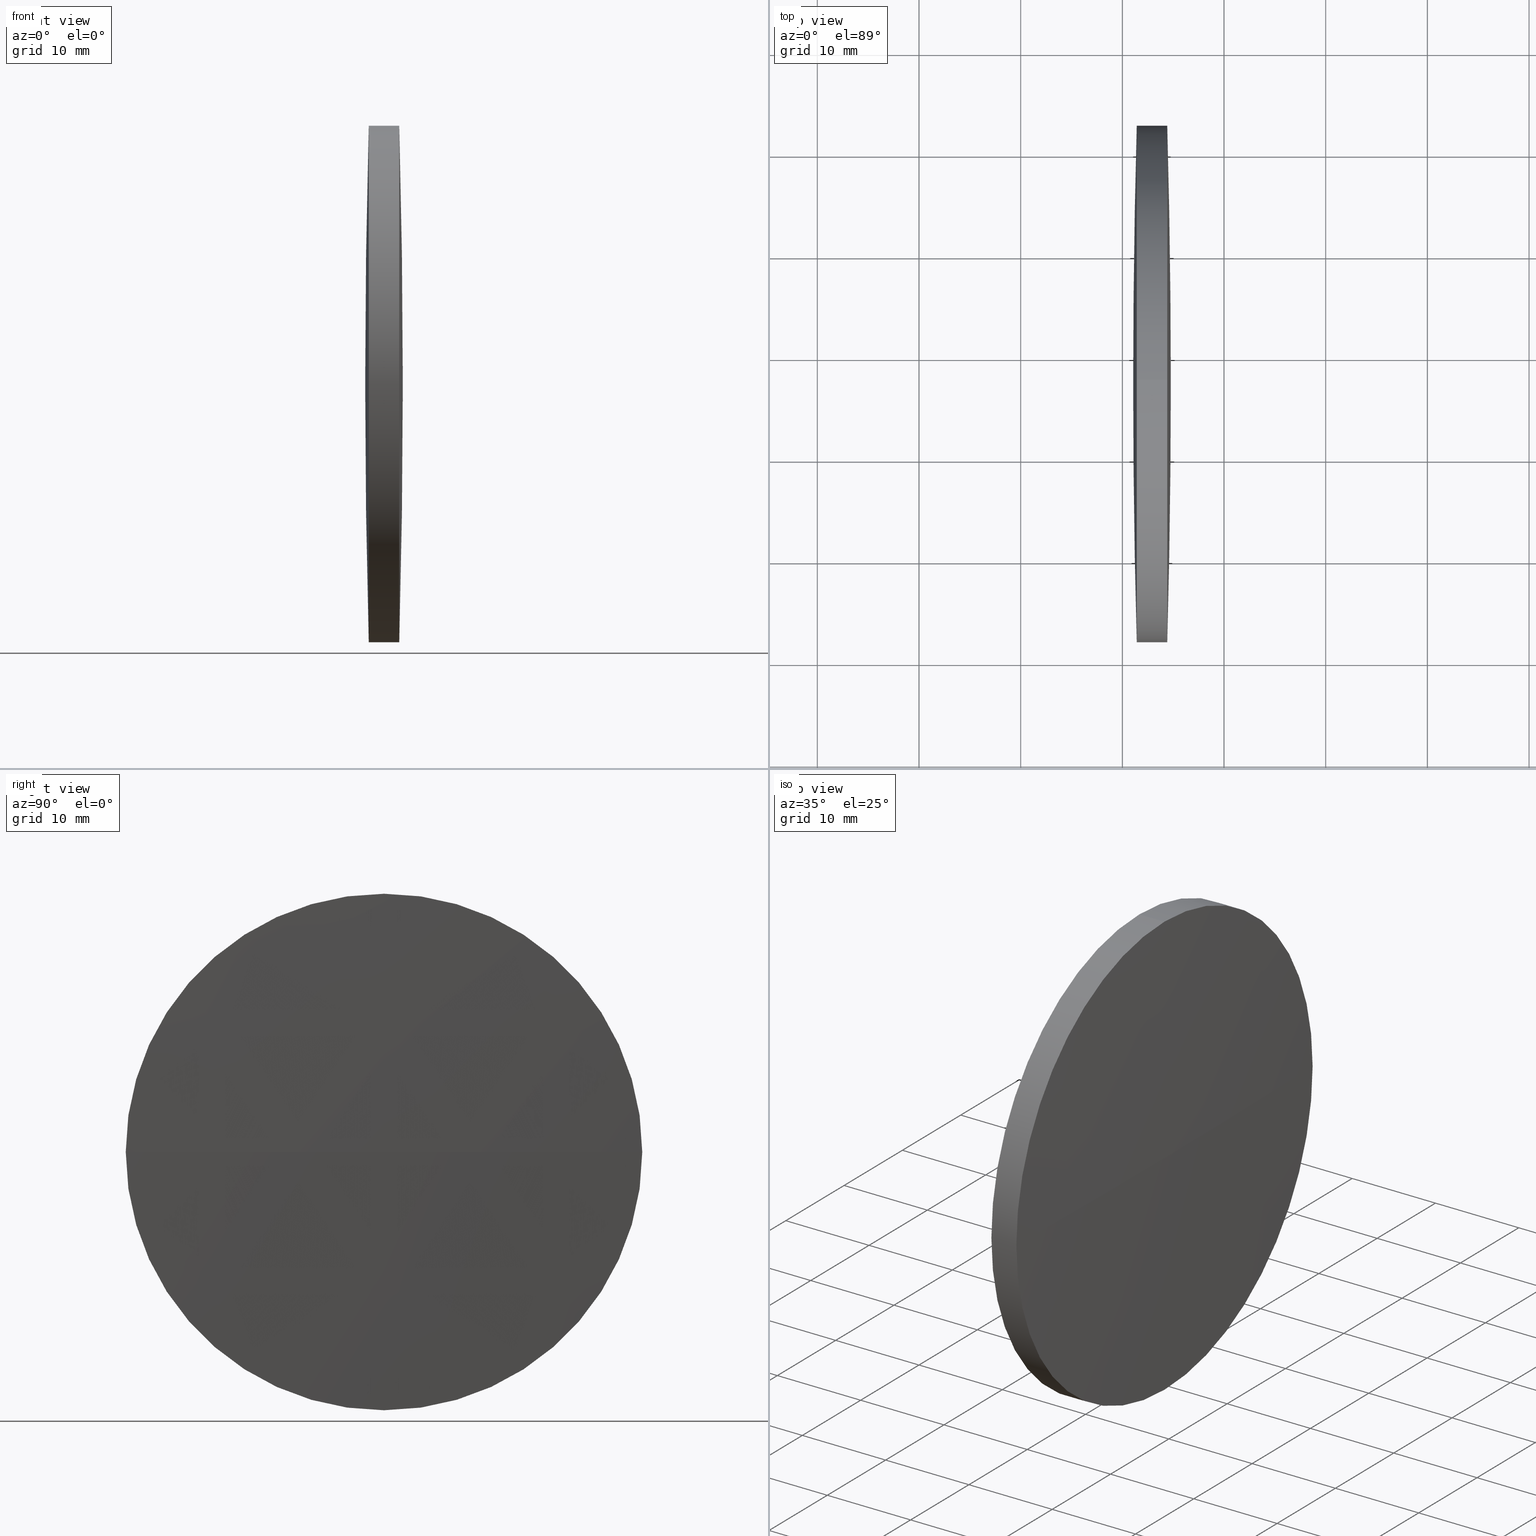
[diagram: canonical four-view strip — front | top / right | iso, engineering-drawing reading convention]
A machine part, canonical four-view strip (front | top / right | iso — engineering-drawing reading convention). The complete STEP part file that produces these views, byte-faithful:
ISO-10303-21;
HEADER;
FILE_DESCRIPTION (( 'STEP AP203' ),
    '1' );
FILE_NAME ('110111.STEP',
    '2019-07-08T08:36:37',
    ( '' ),
    ( '' ),
    'SwSTEP 2.0',
    'SolidWorks 2016',
    '' );
FILE_SCHEMA (( 'CONFIG_CONTROL_DESIGN' ));
ENDSEC;

DATA;
#1 = VECTOR ( 'NONE', #315, 1000.000000000000000 ) ;
#2 = AXIS2_PLACEMENT_3D ( 'NONE', #11, #34, #241 ) ;
#3 = APPROVAL_ROLE ( '' ) ;
#4 = APPROVAL_STATUS ( 'not_yet_approved' ) ;
#5 = CC_DESIGN_PERSON_AND_ORGANIZATION_ASSIGNMENT ( #142, #140, ( #295 ) ) ;
#6 = EDGE_CURVE ( 'NONE', #223, #303, #261, .T. ) ;
#7 = VERTEX_POINT ( 'NONE', #260 ) ;
#8 = APPROVAL_PERSON_ORGANIZATION ( #321, #181, #280 ) ;
#9 = CC_DESIGN_PERSON_AND_ORGANIZATION_ASSIGNMENT ( #88, #77, ( #195 ) ) ;
#10 = PERSON_AND_ORGANIZATION ( #177, #174 ) ;
#11 = CARTESIAN_POINT ( 'NONE',  ( 174.4163664064679400, 97.23222604636956100, 0.0000000000000000000 ) ) ;
#12 = ORIENTED_EDGE ( 'NONE', *, *, #345, .F. ) ;
#13 = FACE_OUTER_BOUND ( 'NONE', #265, .T. ) ;
#14 = ADVANCED_FACE ( 'NONE', ( #328 ), #247, .T. ) ;
#15 = CALENDAR_DATE ( 2019, 8, 7 ) ;
#16 = COORDINATED_UNIVERSAL_TIME_OFFSET ( 8, 0, .AHEAD. ) ;
#17 = FACE_OUTER_BOUND ( 'NONE', #121, .T. ) ;
#18 = CARTESIAN_POINT ( 'NONE',  ( 174.7663856636108100, 97.23222604636841000, 0.0000000000000000000 ) ) ;
#19 = ORIENTED_EDGE ( 'NONE', *, *, #238, .F. ) ;
#20 =( NAMED_UNIT ( * ) SI_UNIT ( $, .STERADIAN. ) SOLID_ANGLE_UNIT ( ) );
#21 = COORDINATED_UNIVERSAL_TIME_OFFSET ( 8, 0, .AHEAD. ) ;
#22 = CARTESIAN_POINT ( 'NONE',  ( 165.7441079421506900, 97.23222604636956100, 0.0000000000000000000 ) ) ;
#23 = MANIFOLD_SOLID_BREP ( '��ת1', #287 ) ;
#24 = PERSON_AND_ORGANIZATION_ROLE ( 'creator' ) ;
#25 = CALENDAR_DATE ( 2019, 8, 7 ) ;
#26 = ORIENTED_EDGE ( 'NONE', *, *, #104, .T. ) ;
#27 = CC_DESIGN_DATE_AND_TIME_ASSIGNMENT ( #264, #111, ( #85 ) ) ;
#28 = PERSON_AND_ORGANIZATION_ROLE ( 'design_owner' ) ;
#29 = AXIS2_PLACEMENT_3D ( 'NONE', #220, #132, #135 ) ;
#30 = COORDINATED_UNIVERSAL_TIME_OFFSET ( 8, 0, .AHEAD. ) ;
#31 = ORIENTED_EDGE ( 'NONE', *, *, #81, .T. ) ;
#32 = ORIENTED_EDGE ( 'NONE', *, *, #290, .F. ) ;
#33 = PERSON_AND_ORGANIZATION ( #177, #174 ) ;
#34 = DIRECTION ( 'NONE',  ( -1.000000000000000000, -0.0000000000000000000, -0.0000000000000000000 ) ) ;
#35 = APPROVAL_DATE_TIME ( #65, #107 ) ;
#36 = DIRECTION ( 'NONE',  ( 0.0000000000000000000, 1.000000000000000000, 0.0000000000000000000 ) ) ;
#37 = DIRECTION ( 'NONE',  ( -1.000000000000000000, -0.0000000000000000000, -0.0000000000000000000 ) ) ;
#38 = AXIS2_PLACEMENT_3D ( 'NONE', #267, #191, #194 ) ;
#39 = CARTESIAN_POINT ( 'NONE',  ( 174.4163664064679700, 122.6322260463703800, 0.0000000000000000000 ) ) ;
#40 = LOCAL_TIME ( 16, 36, 36.00000000000000000, #206 ) ;
#41 = DIRECTION ( 'NONE',  ( -1.000000000000000000, -0.0000000000000000000, -0.0000000000000000000 ) ) ;
#42 = VERTEX_POINT ( 'NONE', #332 ) ;
#43 = DIRECTION ( 'NONE',  ( 0.0000000000000000000, 0.0000000000000000000, 1.000000000000000000 ) ) ;
#44 = DIRECTION ( 'NONE',  ( 0.0000000000000000000, 1.224646799147353200E-016, -1.000000000000000000 ) ) ;
#45 =( GEOMETRIC_REPRESENTATION_CONTEXT ( 3 ) GLOBAL_UNCERTAINTY_ASSIGNED_CONTEXT ( ( #146 ) ) GLOBAL_UNIT_ASSIGNED_CONTEXT ( ( #164, #193, #20 ) ) REPRESENTATION_CONTEXT ( 'NONE', 'WORKASPACE' ) );
#46 = PERSON_AND_ORGANIZATION_ROLE ( 'classification_officer' ) ;
#47 = ORIENTED_EDGE ( 'NONE', *, *, #316, .F. ) ;
#48 = VECTOR ( 'NONE', #186, 1000.000000000000000 ) ;
#49 = VERTEX_POINT ( 'NONE', #214 ) ;
#50 = APPROVAL_STATUS ( 'not_yet_approved' ) ;
#51 = ORIENTED_EDGE ( 'NONE', *, *, #6, .T. ) ;
#52 = MECHANICAL_CONTEXT ( 'NONE', #139, 'mechanical' ) ;
#53 = DATE_AND_TIME ( #275, #333 ) ;
#54 = APPLICATION_PROTOCOL_DEFINITION ( 'international standard', 'config_control_design', 1994, #114 ) ;
#55 = FACE_OUTER_BOUND ( 'NONE', #331, .T. ) ;
#56 = SPHERICAL_SURFACE ( 'NONE', #192, 921.7814453236338700 ) ;
#57 = CC_DESIGN_PERSON_AND_ORGANIZATION_ASSIGNMENT ( #147, #113, ( #225 ) ) ;
#58 = PERSON_AND_ORGANIZATION ( #177, #174 ) ;
#59 = CIRCLE ( 'NONE', #122, 25.39999999999999100 ) ;
#60 = DIRECTION ( 'NONE',  ( -1.000000000000000000, -0.0000000000000000000, -0.0000000000000000000 ) ) ;
#61 = LOCAL_TIME ( 16, 36, 36.00000000000000000, #322 ) ;
#62 = CC_DESIGN_APPROVAL ( #330, ( #85 ) ) ;
#63 = ADVANCED_FACE ( 'NONE', ( #13 ), #94, .T. ) ;
#64 = AXIS2_PLACEMENT_3D ( 'NONE', #304, #170, #297 ) ;
#65 = DATE_AND_TIME ( #87, #289 ) ;
#66 = DIRECTION ( 'NONE',  ( 0.0000000000000000000, 1.000000000000000000, 0.0000000000000000000 ) ) ;
#67 = CARTESIAN_POINT ( 'NONE',  ( 0.0000000000000000000, 0.0000000000000000000, 0.0000000000000000000 ) ) ;
#68 = CARTESIAN_POINT ( 'NONE',  ( -747.0150596599935400, 97.23222604636835300, 0.0000000000000000000 ) ) ;
#69 = APPROVAL_PERSON_ORGANIZATION ( #226, #107, #277 ) ;
#70 = PERSON_AND_ORGANIZATION ( #177, #174 ) ;
#71 = ORIENTED_EDGE ( 'NONE', *, *, #250, .T. ) ;
#72 = CARTESIAN_POINT ( 'NONE',  ( 0.0000000000000000000, 0.0000000000000000000, 0.0000000000000000000 ) ) ;
#73 = EDGE_CURVE ( 'NONE', #303, #285, #75, .T. ) ;
#74 = ORIENTED_EDGE ( 'NONE', *, *, #165, .T. ) ;
#75 = CIRCLE ( 'NONE', #129, 25.39999999999999100 ) ;
#76 = APPROVAL_STATUS ( 'not_yet_approved' ) ;
#77 = PERSON_AND_ORGANIZATION_ROLE ( 'design_owner' ) ;
#78 = CIRCLE ( 'NONE', #29, 921.7814453236338700 ) ;
#79 = PERSON_AND_ORGANIZATION_ROLE ( 'design_supplier' ) ;
#80 = APPROVAL ( #4, 'δָ��' ) ;
#81 = EDGE_CURVE ( 'NONE', #285, #42, #266, .T. ) ;
#82 = PERSON_AND_ORGANIZATION ( #177, #174 ) ;
#83 = DATE_AND_TIME ( #292, #137 ) ;
#84 = ORIENTED_EDGE ( 'NONE', *, *, #165, .F. ) ;
#85 = SECURITY_CLASSIFICATION ( '', '', #249 ) ;
#86 = CC_DESIGN_APPROVAL ( #189, ( #312 ) ) ;
#87 = CALENDAR_DATE ( 2019, 8, 7 ) ;
#88 = PERSON_AND_ORGANIZATION ( #177, #174 ) ;
#89 = ORIENTED_EDGE ( 'NONE', *, *, #90, .T. ) ;
#90 = EDGE_CURVE ( 'NONE', #285, #7, #126, .T. ) ;
#91 = APPROVAL_PERSON_ORGANIZATION ( #313, #189, #141 ) ;
#92 = ORIENTED_EDGE ( 'NONE', *, *, #73, .T. ) ;
#93 = DIRECTION ( 'NONE',  ( -1.000000000000000000, -0.0000000000000000000, -0.0000000000000000000 ) ) ;
#94 = CYLINDRICAL_SURFACE ( 'NONE', #112, 25.39999999999999100 ) ;
#95 = AXIS2_PLACEMENT_3D ( 'NONE', #293, #124, #291 ) ;
#96 = ADVANCED_FACE ( 'NONE', ( #55 ), #56, .T. ) ;
#97 = CARTESIAN_POINT ( 'NONE',  ( 174.4163664064679400, 97.23222604636956100, 0.0000000000000000000 ) ) ;
#98 = LOCAL_TIME ( 16, 36, 36.00000000000000000, #258 ) ;
#99 = CIRCLE ( 'NONE', #208, 921.7814453236043200 ) ;
#100 = CARTESIAN_POINT ( 'NONE',  ( 165.7441079421506900, 97.23222604636956100, 0.0000000000000000000 ) ) ;
#101 = CC_DESIGN_DATE_AND_TIME_ASSIGNMENT ( #166, #252, ( #311 ) ) ;
#102 = APPROVAL_DATE_TIME ( #180, #171 ) ;
#103 = DIRECTION ( 'NONE',  ( -0.0000000000000000000, 0.0000000000000000000, -1.000000000000000000 ) ) ;
#104 = EDGE_CURVE ( 'NONE', #199, #49, #217, .T. ) ;
#105 = CARTESIAN_POINT ( 'NONE',  ( 171.4164086921822200, 97.23222604636956100, 0.0000000000000000000 ) ) ;
#106 = DIRECTION ( 'NONE',  ( -0.0000000000000000000, 0.0000000000000000000, 1.000000000000000000 ) ) ;
#107 = APPROVAL ( #76, 'δָ��' ) ;
#108 = CIRCLE ( 'NONE', #64, 25.39999999999999100 ) ;
#109 = AXIS2_PLACEMENT_3D ( 'NONE', #72, #340, #305 ) ;
#110 = ORIENTED_EDGE ( 'NONE', *, *, #255, .F. ) ;
#111 = DATE_TIME_ROLE ( 'classification_date' ) ;
#112 = AXIS2_PLACEMENT_3D ( 'NONE', #100, #93, #213 ) ;
#113 = PERSON_AND_ORGANIZATION_ROLE ( 'creator' ) ;
#114 = APPLICATION_CONTEXT ( 'configuration controlled 3d designs of mechanical parts and assemblies' ) ;
#115 = ORIENTED_EDGE ( 'NONE', *, *, #250, .F. ) ;
#116 = AXIS2_PLACEMENT_3D ( 'NONE', #338, #159, #36 ) ;
#117 = CALENDAR_DATE ( 2019, 8, 7 ) ;
#118 = CC_DESIGN_PERSON_AND_ORGANIZATION_ASSIGNMENT ( #302, #24, ( #312 ) ) ;
#119 = PERSON_AND_ORGANIZATION ( #177, #174 ) ;
#120 = PERSON_AND_ORGANIZATION ( #177, #174 ) ;
#121 = EDGE_LOOP ( 'NONE', ( #115, #156, #26, #298 ) ) ;
#122 = AXIS2_PLACEMENT_3D ( 'NONE', #197, #41, #190 ) ;
#123 = CALENDAR_DATE ( 2019, 8, 7 ) ;
#124 = DIRECTION ( 'NONE',  ( -1.000000000000000000, -0.0000000000000000000, -0.0000000000000000000 ) ) ;
#125 = ORIENTED_EDGE ( 'NONE', *, *, #290, .T. ) ;
#126 = CIRCLE ( 'NONE', #95, 25.39999999999999100 ) ;
#127 = DIRECTION ( 'NONE',  ( 0.0000000000000000000, 0.0000000000000000000, 1.000000000000000000 ) ) ;
#128 = CC_DESIGN_APPROVAL ( #171, ( #212 ) ) ;
#129 = AXIS2_PLACEMENT_3D ( 'NONE', #97, #60, #127 ) ;
#130 = COORDINATED_UNIVERSAL_TIME_OFFSET ( 8, 0, .AHEAD. ) ;
#131 = CIRCLE ( 'NONE', #319, 921.7814453236338700 ) ;
#132 = DIRECTION ( 'NONE',  ( 0.0000000000000000000, 1.224646799147353200E-016, -1.000000000000000000 ) ) ;
#133 = CC_DESIGN_PERSON_AND_ORGANIZATION_ASSIGNMENT ( #82, #176, ( #85 ) ) ;
#134 = CARTESIAN_POINT ( 'NONE',  ( -747.0150596599935400, 97.23222604636835300, 0.0000000000000000000 ) ) ;
#135 = DIRECTION ( 'NONE',  ( 0.0000000000000000000, 1.000000000000000000, 1.224646799147353200E-016 ) ) ;
#136 = EDGE_CURVE ( 'NONE', #223, #199, #270, .T. ) ;
#137 = LOCAL_TIME ( 16, 36, 36.00000000000000000, #16 ) ;
#138 = CYLINDRICAL_SURFACE ( 'NONE', #246, 25.39999999999999100 ) ;
#139 = APPLICATION_CONTEXT ( 'configuration controlled 3d designs of mechanical parts and assemblies' ) ;
#140 = PERSON_AND_ORGANIZATION_ROLE ( 'creator' ) ;
#141 = APPROVAL_ROLE ( '' ) ;
#142 = PERSON_AND_ORGANIZATION ( #177, #174 ) ;
#143 = APPROVAL_DATE_TIME ( #53, #189 ) ;
#144 = CC_DESIGN_PERSON_AND_ORGANIZATION_ASSIGNMENT ( #58, #200, ( #312 ) ) ;
#145 = PERSON_AND_ORGANIZATION_ROLE ( 'creator' ) ;
#146 = UNCERTAINTY_MEASURE_WITH_UNIT (LENGTH_MEASURE( 1.000000000000000100E-005 ), #164, 'distance_accuracy_value', 'NONE');
#147 = PERSON_AND_ORGANIZATION ( #177, #174 ) ;
#148 = ORIENTED_EDGE ( 'NONE', *, *, #255, .T. ) ;
#149 = CC_DESIGN_APPROVAL ( #107, ( #295 ) ) ;
#150 = CC_DESIGN_PERSON_AND_ORGANIZATION_ASSIGNMENT ( #216, #145, ( #212 ) ) ;
#151 = LOCAL_TIME ( 16, 36, 36.00000000000000000, #30 ) ;
#152 = AXIS2_PLACEMENT_3D ( 'NONE', #240, #37, #158 ) ;
#153 = DESIGN_CONTEXT ( 'detailed design', #114, 'design' ) ;
#154 = CALENDAR_DATE ( 2019, 8, 7 ) ;
#155 = APPROVAL_PERSON_ORGANIZATION ( #10, #330, #283 ) ;
#156 = ORIENTED_EDGE ( 'NONE', *, *, #184, .T. ) ;
#157 = ADVANCED_FACE ( 'NONE', ( #308 ), #343, .T. ) ;
#158 = DIRECTION ( 'NONE',  ( 0.0000000000000000000, 0.0000000000000000000, 1.000000000000000000 ) ) ;
#159 = DIRECTION ( 'NONE',  ( -0.0000000000000000000, 0.0000000000000000000, -1.000000000000000000 ) ) ;
#160 = ADVANCED_FACE ( 'NONE', ( #234 ), #138, .T. ) ;
#161 = DATE_AND_TIME ( #182, #236 ) ;
#162 = ORIENTED_EDGE ( 'NONE', *, *, #136, .T. ) ;
#163 = CC_DESIGN_DATE_AND_TIME_ASSIGNMENT ( #230, #229, ( #212 ) ) ;
#164 =( LENGTH_UNIT ( ) NAMED_UNIT ( * ) SI_UNIT ( .MILLI., .METRE. ) );
#165 = EDGE_CURVE ( 'NONE', #335, #303, #201, .T. ) ;
#166 = DATE_AND_TIME ( #25, #151 ) ;
#167 = SHAPE_DEFINITION_REPRESENTATION ( #254, #222 ) ;
#168 = VERTEX_POINT ( 'NONE', #263 ) ;
#169 = DIRECTION ( 'NONE',  ( 0.0000000000000000000, 0.0000000000000000000, 1.000000000000000000 ) ) ;
#170 = DIRECTION ( 'NONE',  ( -1.000000000000000000, -0.0000000000000000000, -0.0000000000000000000 ) ) ;
#171 = APPROVAL ( #251, 'δָ��' ) ;
#172 = APPLICATION_PROTOCOL_DEFINITION ( 'international standard', 'config_control_design', 1994, #139 ) ;
#173 = APPLICATION_CONTEXT ( 'configuration controlled 3d designs of mechanical parts and assemblies' ) ;
#174 = ORGANIZATION ( 'δָ��', 'δָ��', '' ) ;
#175 = APPROVAL_STATUS ( 'not_yet_approved' ) ;
#176 = PERSON_AND_ORGANIZATION_ROLE ( 'classification_officer' ) ;
#177 = PERSON ( 'δָ��', 'δָ��', 'δָ��', ('δָ��'), ('δָ��'), ('δָ��') ) ;
#178 = CC_DESIGN_APPROVAL ( #80, ( #225 ) ) ;
#179 = ORIENTED_EDGE ( 'NONE', *, *, #316, .T. ) ;
#180 = DATE_AND_TIME ( #154, #40 ) ;
#181 = APPROVAL ( #50, 'δָ��' ) ;
#182 = CALENDAR_DATE ( 2019, 8, 7 ) ;
#183 = DATE_AND_TIME ( #326, #61 ) ;
#184 = EDGE_CURVE ( 'NONE', #219, #199, #207, .T. ) ;
#185 = ORIENTED_EDGE ( 'NONE', *, *, #184, .F. ) ;
#186 = DIRECTION ( 'NONE',  ( -1.000000000000000000, -0.0000000000000000000, -0.0000000000000000000 ) ) ;
#187 = APPROVAL_DATE_TIME ( #161, #181 ) ;
#188 = DIRECTION ( 'NONE',  ( -0.0000000000000000000, 0.0000000000000000000, -1.000000000000000000 ) ) ;
#189 = APPROVAL ( #204, 'δָ��' ) ;
#190 = DIRECTION ( 'NONE',  ( 0.0000000000000000000, 0.0000000000000000000, 1.000000000000000000 ) ) ;
#191 = DIRECTION ( 'NONE',  ( -0.0000000000000000000, 0.0000000000000000000, -1.000000000000000000 ) ) ;
#192 = AXIS2_PLACEMENT_3D ( 'NONE', #294, #188, #237 ) ;
#193 =( NAMED_UNIT ( * ) PLANE_ANGLE_UNIT ( ) SI_UNIT ( $, .RADIAN. ) );
#194 = DIRECTION ( 'NONE',  ( 0.0000000000000000000, 1.000000000000000000, 0.0000000000000000000 ) ) ;
#195 = PRODUCT ( '110111', '110111', '', ( #278 ) ) ;
#196 = PRODUCT_RELATED_PRODUCT_CATEGORY ( 'detail', '', ( #195 ) ) ;
#197 = CARTESIAN_POINT ( 'NONE',  ( 171.4164086921822200, 97.23222604636956100, 0.0000000000000000000 ) ) ;
#198 = COORDINATED_UNIVERSAL_TIME_OFFSET ( 8, 0, .AHEAD. ) ;
#199 = VERTEX_POINT ( 'NONE', #317 ) ;
#200 = PERSON_AND_ORGANIZATION_ROLE ( 'design_supplier' ) ;
#201 = CIRCLE ( 'NONE', #211, 921.7814453236044300 ) ;
#202 = EDGE_LOOP ( 'NONE', ( #233, #89, #259, #162, #185, #47 ) ) ;
#203 = APPROVAL_ROLE ( '' ) ;
#204 = APPROVAL_STATUS ( 'not_yet_approved' ) ;
#205 = CC_DESIGN_APPROVAL ( #181, ( #311 ) ) ;
#206 = COORDINATED_UNIVERSAL_TIME_OFFSET ( 8, 0, .AHEAD. ) ;
#207 = CIRCLE ( 'NONE', #257, 25.39999999999999100 ) ;
#208 = AXIS2_PLACEMENT_3D ( 'NONE', #273, #44, #344 ) ;
#209 = COORDINATED_UNIVERSAL_TIME_OFFSET ( 8, 0, .AHEAD. ) ;
#210 = CC_DESIGN_PERSON_AND_ORGANIZATION_ASSIGNMENT ( #33, #79, ( #295 ) ) ;
#211 = AXIS2_PLACEMENT_3D ( 'NONE', #68, #272, #244 ) ;
#212 = PRODUCT_DEFINITION ( 'δ֪', '', #295, #286 ) ;
#213 = DIRECTION ( 'NONE',  ( 0.0000000000000000000, 0.0000000000000000000, 1.000000000000000000 ) ) ;
#214 = CARTESIAN_POINT ( 'NONE',  ( 171.4164086921822200, 122.6322260463688400, 0.0000000000000000000 ) ) ;
#215 = CARTESIAN_POINT ( 'NONE',  ( 171.4164086921822200, 71.83222604637038000, -3.110602869834187700E-015 ) ) ;
#216 = PERSON_AND_ORGANIZATION ( #177, #174 ) ;
#217 = CIRCLE ( 'NONE', #152, 25.39999999999999100 ) ;
#218 = CC_DESIGN_SECURITY_CLASSIFICATION ( #311, ( #295 ) ) ;
#219 = VERTEX_POINT ( 'NONE', #215 ) ;
#220 = CARTESIAN_POINT ( 'NONE',  ( 1092.847834758673300, 97.23222604636964700, 0.0000000000000000000 ) ) ;
#221 = DIRECTION ( 'NONE',  ( -1.000000000000000000, -0.0000000000000000000, -0.0000000000000000000 ) ) ;
#222 = ADVANCED_BREP_SHAPE_REPRESENTATION ( '110111', ( #23, #109 ), #45 ) ;
#223 = VERTEX_POINT ( 'NONE', #320 ) ;
#224 = APPLICATION_CONTEXT ( 'configuration controlled 3d designs of mechanical parts and assemblies' ) ;
#225 = PRODUCT_DEFINITION ( 'δ֪', '', #312, #153 ) ;
#226 = PERSON_AND_ORGANIZATION ( #177, #174 ) ;
#227 = DIRECTION ( 'NONE',  ( 0.0000000000000000000, 0.0000000000000000000, 1.000000000000000000 ) ) ;
#228 = AXIS2_PLACEMENT_3D ( 'NONE', #134, #103, #66 ) ;
#229 = DATE_TIME_ROLE ( 'creation_date' ) ;
#230 = DATE_AND_TIME ( #15, #98 ) ;
#231 = LOCAL_TIME ( 16, 36, 36.00000000000000000, #209 ) ;
#232 = APPROVAL_DATE_TIME ( #83, #80 ) ;
#233 = ORIENTED_EDGE ( 'NONE', *, *, #81, .F. ) ;
#234 = FACE_OUTER_BOUND ( 'NONE', #202, .T. ) ;
#235 = PRODUCT_RELATED_PRODUCT_CATEGORY ( 'detail', '', ( #284 ) ) ;
#236 = LOCAL_TIME ( 16, 36, 36.00000000000000000, #318 ) ;
#237 = DIRECTION ( 'NONE',  ( 0.0000000000000000000, 1.000000000000000000, 0.0000000000000000000 ) ) ;
#238 = EDGE_CURVE ( 'NONE', #7, #223, #256, .T. ) ;
#239 = APPROVAL_PERSON_ORGANIZATION ( #327, #80, #203 ) ;
#240 = CARTESIAN_POINT ( 'NONE',  ( 171.4164086921822200, 97.23222604636956100, 0.0000000000000000000 ) ) ;
#241 = DIRECTION ( 'NONE',  ( 0.0000000000000000000, 0.0000000000000000000, 1.000000000000000000 ) ) ;
#242 = CARTESIAN_POINT ( 'NONE',  ( 165.7441079421506900, 97.23222604636956100, 25.39999999999999100 ) ) ;
#243 = CC_DESIGN_DATE_AND_TIME_ASSIGNMENT ( #183, #309, ( #225 ) ) ;
#244 = DIRECTION ( 'NONE',  ( 1.000000000000000000, 0.0000000000000000000, 0.0000000000000000000 ) ) ;
#245 = DIRECTION ( 'NONE',  ( -1.000000000000000000, -0.0000000000000000000, -0.0000000000000000000 ) ) ;
#246 = AXIS2_PLACEMENT_3D ( 'NONE', #22, #301, #43 ) ;
#247 = SPHERICAL_SURFACE ( 'NONE', #116, 921.7814453236044300 ) ;
#248 = CARTESIAN_POINT ( 'NONE',  ( 174.4163664064679400, 97.23222604636956100, -25.39999999999999100 ) ) ;
#249 = SECURITY_CLASSIFICATION_LEVEL ( 'unclassified' ) ;
#250 = EDGE_CURVE ( 'NONE', #219, #168, #78, .T. ) ;
#251 = APPROVAL_STATUS ( 'not_yet_approved' ) ;
#252 = DATE_TIME_ROLE ( 'classification_date' ) ;
#253 = ORIENTED_EDGE ( 'NONE', *, *, #136, .F. ) ;
#254 = PRODUCT_DEFINITION_SHAPE ( 'NONE', 'NONE',  #212 ) ;
#255 = EDGE_CURVE ( 'NONE', #335, #7, #99, .T. ) ;
#256 = CIRCLE ( 'NONE', #282, 25.39999999999999100 ) ;
#257 = AXIS2_PLACEMENT_3D ( 'NONE', #105, #221, #299 ) ;
#258 = COORDINATED_UNIVERSAL_TIME_OFFSET ( 8, 0, .AHEAD. ) ;
#259 = ORIENTED_EDGE ( 'NONE', *, *, #238, .T. ) ;
#260 = CARTESIAN_POINT ( 'NONE',  ( 174.4163664064679700, 71.83222604636755200, -3.110602869834376700E-015 ) ) ;
#261 = CIRCLE ( 'NONE', #2, 25.39999999999999100 ) ;
#262 = AXIS2_PLACEMENT_3D ( 'NONE', #67, #227, #306 ) ;
#263 = CARTESIAN_POINT ( 'NONE',  ( 171.0663894350395000, 97.23222604636970300, 0.0000000000000000000 ) ) ;
#264 = DATE_AND_TIME ( #123, #231 ) ;
#265 = EDGE_LOOP ( 'NONE', ( #92, #31, #32, #314, #253, #51 ) ) ;
#266 = LINE ( 'NONE', #337, #1 ) ;
#267 = CARTESIAN_POINT ( 'NONE',  ( 1092.847834758673300, 97.23222604636964700, 0.0000000000000000000 ) ) ;
#268 = DIRECTION ( 'NONE',  ( 1.000000000000000000, 0.0000000000000000000, 0.0000000000000000000 ) ) ;
#269 = APPROVAL_PERSON_ORGANIZATION ( #120, #171, #3 ) ;
#270 = LINE ( 'NONE', #242, #48 ) ;
#271 = ADVANCED_FACE ( 'NONE', ( #17 ), #296, .T. ) ;
#272 = DIRECTION ( 'NONE',  ( -0.0000000000000000000, 0.0000000000000000000, 1.000000000000000000 ) ) ;
#273 = CARTESIAN_POINT ( 'NONE',  ( -747.0150596599935400, 97.23222604636835300, 0.0000000000000000000 ) ) ;
#274 = CARTESIAN_POINT ( 'NONE',  ( 1092.847834758673300, 97.23222604636964700, 0.0000000000000000000 ) ) ;
#275 = CALENDAR_DATE ( 2019, 8, 7 ) ;
#276 = SECURITY_CLASSIFICATION_LEVEL ( 'unclassified' ) ;
#277 = APPROVAL_ROLE ( '' ) ;
#278 = MECHANICAL_CONTEXT ( 'NONE', #173, 'mechanical' ) ;
#279 = CC_DESIGN_PERSON_AND_ORGANIZATION_ASSIGNMENT ( #70, #28, ( #284 ) ) ;
#280 = APPROVAL_ROLE ( '' ) ;
#281 = DATE_AND_TIME ( #117, #341 ) ;
#282 = AXIS2_PLACEMENT_3D ( 'NONE', #300, #245, #169 ) ;
#283 = APPROVAL_ROLE ( '' ) ;
#284 = PRODUCT ( '110111', '110111', '', ( #52 ) ) ;
#285 = VERTEX_POINT ( 'NONE', #248 ) ;
#286 = DESIGN_CONTEXT ( 'detailed design', #224, 'design' ) ;
#287 = CLOSED_SHELL ( 'NONE', ( #63, #14, #96, #271, #157, #160 ) ) ;
#288 = EDGE_LOOP ( 'NONE', ( #84, #148, #334, #323 ) ) ;
#289 = LOCAL_TIME ( 16, 36, 36.00000000000000000, #130 ) ;
#290 = EDGE_CURVE ( 'NONE', #49, #42, #59, .T. ) ;
#291 = DIRECTION ( 'NONE',  ( 0.0000000000000000000, 0.0000000000000000000, 1.000000000000000000 ) ) ;
#292 = CALENDAR_DATE ( 2019, 8, 7 ) ;
#293 = CARTESIAN_POINT ( 'NONE',  ( 174.4163664064679400, 97.23222604636956100, 0.0000000000000000000 ) ) ;
#294 = CARTESIAN_POINT ( 'NONE',  ( 1092.847834758673300, 97.23222604636964700, 0.0000000000000000000 ) ) ;
#295 = PRODUCT_DEFINITION_FORMATION_WITH_SPECIFIED_SOURCE ( '�κ�', '', #284, .NOT_KNOWN. ) ;
#296 = SPHERICAL_SURFACE ( 'NONE', #38, 921.7814453236338700 ) ;
#297 = DIRECTION ( 'NONE',  ( 0.0000000000000000000, 0.0000000000000000000, 1.000000000000000000 ) ) ;
#298 = ORIENTED_EDGE ( 'NONE', *, *, #345, .T. ) ;
#299 = DIRECTION ( 'NONE',  ( 0.0000000000000000000, 0.0000000000000000000, 1.000000000000000000 ) ) ;
#300 = CARTESIAN_POINT ( 'NONE',  ( 174.4163664064679400, 97.23222604636956100, 0.0000000000000000000 ) ) ;
#301 = DIRECTION ( 'NONE',  ( -1.000000000000000000, -0.0000000000000000000, -0.0000000000000000000 ) ) ;
#302 = PERSON_AND_ORGANIZATION ( #177, #174 ) ;
#303 = VERTEX_POINT ( 'NONE', #39 ) ;
#304 = CARTESIAN_POINT ( 'NONE',  ( 171.4164086921822200, 97.23222604636956100, 0.0000000000000000000 ) ) ;
#305 = DIRECTION ( 'NONE',  ( 1.000000000000000000, 0.0000000000000000000, 0.0000000000000000000 ) ) ;
#306 = DIRECTION ( 'NONE',  ( 1.000000000000000000, 0.0000000000000000000, 0.0000000000000000000 ) ) ;
#307 = APPLICATION_PROTOCOL_DEFINITION ( 'international standard', 'config_control_design', 1994, #224 ) ;
#308 = FACE_OUTER_BOUND ( 'NONE', #325, .T. ) ;
#309 = DATE_TIME_ROLE ( 'creation_date' ) ;
#310 = APPLICATION_PROTOCOL_DEFINITION ( 'international standard', 'config_control_design', 1994, #173 ) ;
#311 = SECURITY_CLASSIFICATION ( '', '', #276 ) ;
#312 = PRODUCT_DEFINITION_FORMATION_WITH_SPECIFIED_SOURCE ( '�κ�', '', #195, .NOT_KNOWN. ) ;
#313 = PERSON_AND_ORGANIZATION ( #177, #174 ) ;
#314 = ORIENTED_EDGE ( 'NONE', *, *, #104, .F. ) ;
#315 = DIRECTION ( 'NONE',  ( -1.000000000000000000, -0.0000000000000000000, -0.0000000000000000000 ) ) ;
#316 = EDGE_CURVE ( 'NONE', #42, #219, #108, .T. ) ;
#317 = CARTESIAN_POINT ( 'NONE',  ( 171.4164086921822200, 97.23222604636956100, 25.39999999999999100 ) ) ;
#318 = COORDINATED_UNIVERSAL_TIME_OFFSET ( 8, 0, .AHEAD. ) ;
#319 = AXIS2_PLACEMENT_3D ( 'NONE', #274, #106, #268 ) ;
#320 = CARTESIAN_POINT ( 'NONE',  ( 174.4163664064679400, 97.23222604636956100, 25.39999999999999100 ) ) ;
#321 = PERSON_AND_ORGANIZATION ( #177, #174 ) ;
#322 = COORDINATED_UNIVERSAL_TIME_OFFSET ( 8, 0, .AHEAD. ) ;
#323 = ORIENTED_EDGE ( 'NONE', *, *, #73, .F. ) ;
#324 = CC_DESIGN_SECURITY_CLASSIFICATION ( #85, ( #312 ) ) ;
#325 = EDGE_LOOP ( 'NONE', ( #110, #74, #336, #19 ) ) ;
#326 = CALENDAR_DATE ( 2019, 8, 7 ) ;
#327 = PERSON_AND_ORGANIZATION ( #177, #174 ) ;
#328 = FACE_OUTER_BOUND ( 'NONE', #288, .T. ) ;
#329 = APPROVAL_DATE_TIME ( #281, #330 ) ;
#330 = APPROVAL ( #175, 'δָ��' ) ;
#331 = EDGE_LOOP ( 'NONE', ( #125, #179, #71, #12 ) ) ;
#332 = CARTESIAN_POINT ( 'NONE',  ( 171.4164086921822200, 97.23222604636956100, -25.39999999999999100 ) ) ;
#333 = LOCAL_TIME ( 16, 36, 36.00000000000000000, #21 ) ;
#334 = ORIENTED_EDGE ( 'NONE', *, *, #90, .F. ) ;
#335 = VERTEX_POINT ( 'NONE', #18 ) ;
#336 = ORIENTED_EDGE ( 'NONE', *, *, #6, .F. ) ;
#337 = CARTESIAN_POINT ( 'NONE',  ( 165.7441079421506900, 97.23222604636956100, -25.39999999999999100 ) ) ;
#338 = CARTESIAN_POINT ( 'NONE',  ( -747.0150596599935400, 97.23222604636835300, 0.0000000000000000000 ) ) ;
#339 = CC_DESIGN_PERSON_AND_ORGANIZATION_ASSIGNMENT ( #119, #46, ( #311 ) ) ;
#340 = DIRECTION ( 'NONE',  ( 0.0000000000000000000, 0.0000000000000000000, 1.000000000000000000 ) ) ;
#341 = LOCAL_TIME ( 16, 36, 36.00000000000000000, #198 ) ;
#342 = PRODUCT_DEFINITION_SHAPE ( 'NONE', 'NONE',  #225 ) ;
#343 = SPHERICAL_SURFACE ( 'NONE', #228, 921.7814453236044300 ) ;
#344 = DIRECTION ( 'NONE',  ( 0.0000000000000000000, 1.000000000000000000, 1.224646799147353500E-016 ) ) ;
#345 = EDGE_CURVE ( 'NONE', #49, #168, #131, .T. ) ;
ENDSEC;
END-ISO-10303-21;
